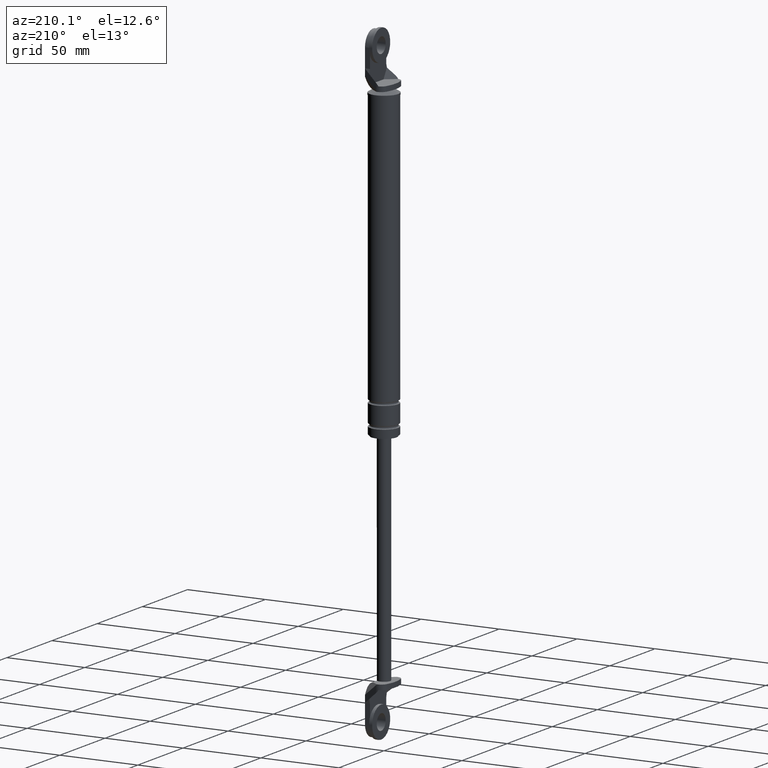
[diagram: clean part render]
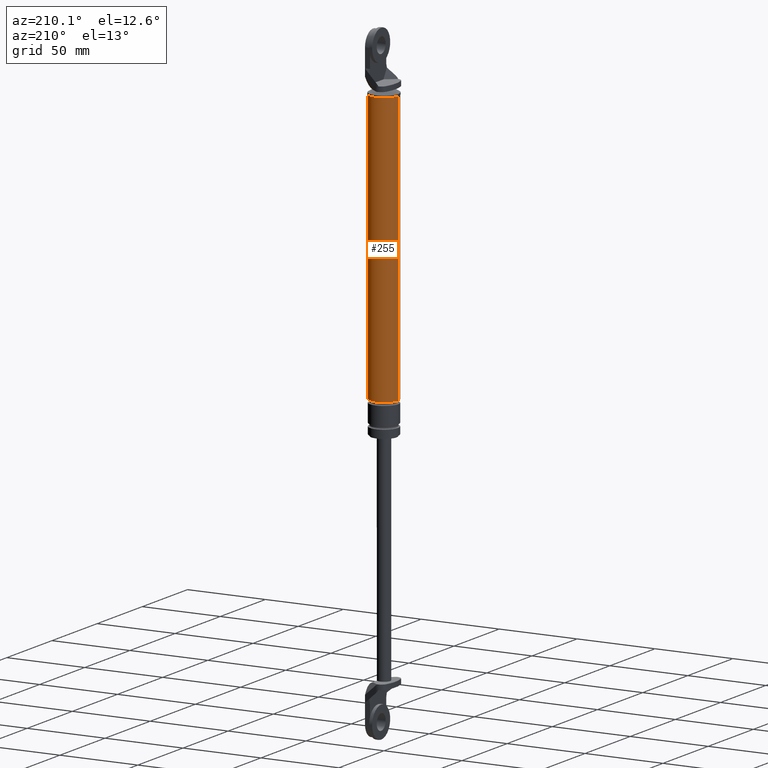
[diagram: same view with one face highlighted and labeled with its STEP entity id]
A machine part, auxiliary view. The second image highlights one B-rep face of the part: STEP entity #255.
In plain terms, the highlighted cylindrical surface (edge-blend (fillet) strip) has radius 9 mm, axis along (0, 0, 1).
Its self-contained STEP definition (entity closure, byte-faithful):
#255=ADVANCED_FACE('',(#805),#804,.T.);
#804=CYLINDRICAL_SURFACE('',#1558,9.00000000000E+000);
#805=FACE_OUTER_BOUND('',#1559,.T.);
#1555=CARTESIAN_POINT('',(0.00000000000E+000,3.58204186421E-014,0.00000000000E+000));
#1556=DIRECTION('',(-0.00000000000E+000,-0.00000000000E+000,1.00000000000E+000));
#1557=DIRECTION('',(1.00000000000E+000,-0.00000000000E+000,-0.00000000000E+000));
#1558=AXIS2_PLACEMENT_3D('',#1555,#1556,#1557);
#1559=EDGE_LOOP('',(#2000,#2001,#2002,#2003));
#2000=ORIENTED_EDGE('',*,*,#2216,.T.);
#2001=ORIENTED_EDGE('',*,*,#2281,.F.);
#2002=ORIENTED_EDGE('',*,*,#2269,.F.);
#2003=ORIENTED_EDGE('',*,*,#2282,.T.);
#2216=EDGE_CURVE('',#2744,#2743,#2751,.T.);
#2269=EDGE_CURVE('',#3098,#3099,#3100,.T.);
#2281=EDGE_CURVE('',#3099,#2743,#3174,.T.);
#2282=EDGE_CURVE('',#3098,#2744,#3180,.T.);
#2743=VERTEX_POINT('',#3920);
#2744=VERTEX_POINT('',#3921);
#2751=CIRCLE('',#3929,9.00000000000E+000);
#3098=VERTEX_POINT('',#4137);
#3099=VERTEX_POINT('',#4138);
#3100=CIRCLE('',#4142,9.00000000000E+000);
#3174=(BOUNDED_CURVE() B_SPLINE_CURVE(1,(#4179,#4180),.UNSPECIFIED.,.F.,.F.) B_SPLINE_CURVE_WITH_KNOTS((2,2),(5.17330573871E-002,9.48266942460E-001),.UNSPECIFIED.) CURVE() GEOMETRIC_REPRESENTATION_ITEM() RATIONAL_B_SPLINE_CURVE((1.00000000000E+000,1.00000000000E+000)) REPRESENTATION_ITEM('') );
#3180=(BOUNDED_CURVE() B_SPLINE_CURVE(1,(#4181,#4182),.UNSPECIFIED.,.F.,.F.) B_SPLINE_CURVE_WITH_KNOTS((2,2),(5.17330574237E-002,9.48266942576E-001),.UNSPECIFIED.) CURVE() GEOMETRIC_REPRESENTATION_ITEM() RATIONAL_B_SPLINE_CURVE((7.50000000000E-001,7.50000000000E-001)) REPRESENTATION_ITEM('') );
#3920=CARTESIAN_POINT('',(9.00000000000E+000,3.61192557345E-014,8.52999850000E+001));
#3921=CARTESIAN_POINT('',(-9.00000000000E+000,3.58204186421E-014,8.52999850000E+001));
#3926=CARTESIAN_POINT('',(0.00000000000E+000,3.58204186421E-014,8.52999850000E+001));
#3927=DIRECTION('',(-0.00000000000E+000,0.00000000000E+000,-1.00000000000E+000));
#3928=DIRECTION('',(-1.00000000000E+000,-1.22460635382E-016,0.00000000000E+000));
#3929=AXIS2_PLACEMENT_3D('',#3926,#3927,#3928);
#4137=CARTESIAN_POINT('',(-9.00000000000E+000,3.58204186421E-014,-8.80000150000E+001));
#4138=CARTESIAN_POINT('',(9.00000000000E+000,3.61192557345E-014,-8.80000150000E+001));
#4139=CARTESIAN_POINT('',(0.00000000000E+000,3.58204186421E-014,-8.80000150000E+001));
#4140=DIRECTION('',(-0.00000000000E+000,0.00000000000E+000,-1.00000000000E+000));
#4141=DIRECTION('',(-1.00000000000E+000,-1.22460635382E-016,0.00000000000E+000));
#4142=AXIS2_PLACEMENT_3D('',#4139,#4140,#4141);
#4179=CARTESIAN_POINT('',(9.00000000000E+000,3.58204186421E-014,-8.80000150071E+001));
#4180=CARTESIAN_POINT('',(9.00000000000E+000,3.58204186421E-014,8.52999849775E+001));
#4181=CARTESIAN_POINT('',(-9.00000000000E+000,3.52310773148E-014,-8.80000150000E+001));
#4182=CARTESIAN_POINT('',(-9.00000000000E+000,3.52310773148E-014,8.52999850000E+001));